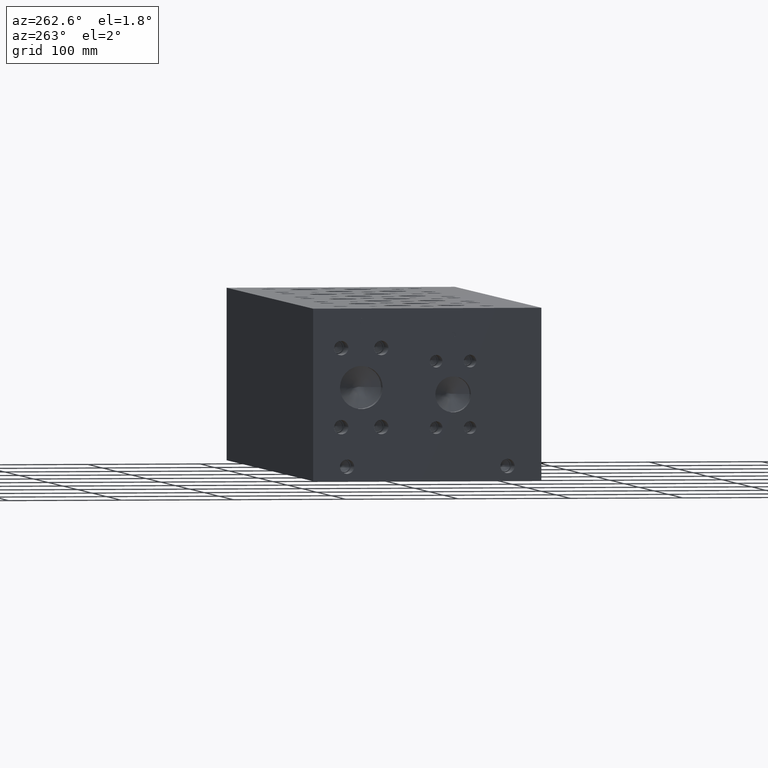
[diagram: clean part render]
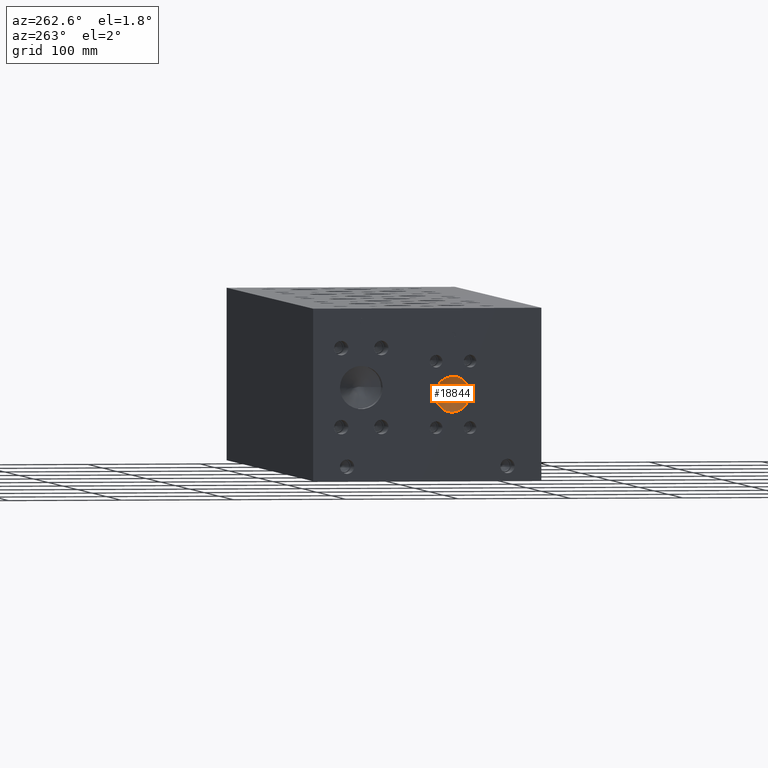
[diagram: same view with one face highlighted and labeled with its STEP entity id]
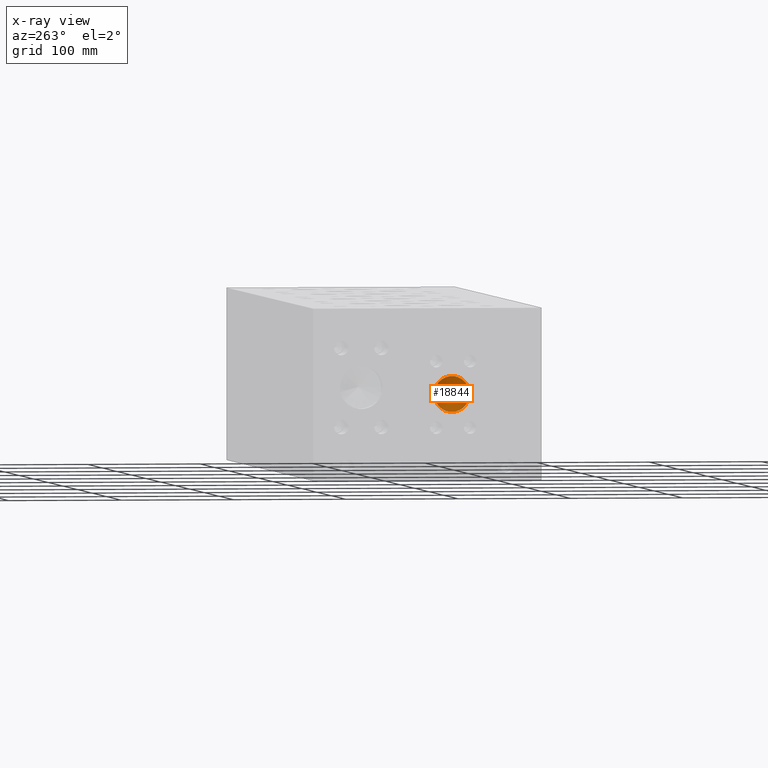
[diagram: x-ray of the same camera — body ghosted, the highlighted face saturated]
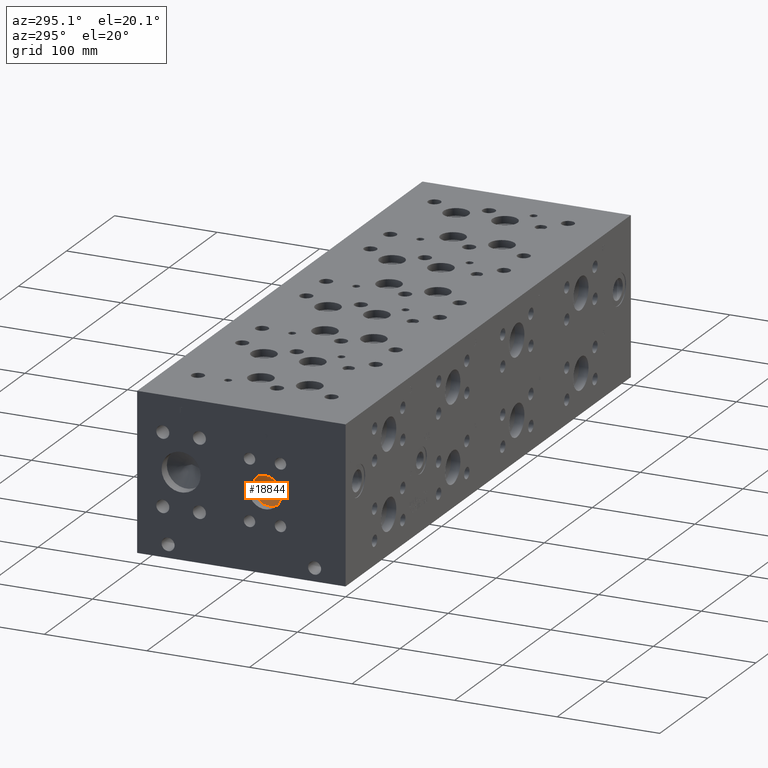
[diagram: same view with one face highlighted and labeled with its STEP entity id]
A machine part, auxiliary view. The second image highlights one B-rep face of the part: STEP entity #18844.
The next image is the same camera in x-ray: the body ghosted, the highlighted face saturated — about 0% of this face is hidden behind the body in this view.
A second angle (auxiliary view) of the same face is appended — the face is thin or edge-on in the first view.
In plain terms, the highlighted conical surface has half-angle 60 deg.
Its self-contained STEP definition (entity closure, byte-faithful):
#239=CONICAL_SURFACE('',#19911,7.9375,1.0471975511966);
#733=CIRCLE('',#19912,15.875);
#734=CIRCLE('',#19913,15.875);
#2511=FACE_OUTER_BOUND('',#3655,.T.);
#3655=EDGE_LOOP('',(#15381,#15382,#15383,#15384));
#5416=LINE('',#31460,#6985);
#6985=VECTOR('',#23483,7.9375);
#8550=VERTEX_POINT('',#31456);
#8551=VERTEX_POINT('',#31457);
#8552=VERTEX_POINT('',#31459);
#11016=EDGE_CURVE('',#8550,#8551,#733,.T.);
#11017=EDGE_CURVE('',#8551,#8552,#5416,.T.);
#11018=EDGE_CURVE('',#8551,#8550,#734,.T.);
#15381=ORIENTED_EDGE('',*,*,#11016,.T.);
#15382=ORIENTED_EDGE('',*,*,#11017,.T.);
#15383=ORIENTED_EDGE('',*,*,#11017,.F.);
#15384=ORIENTED_EDGE('',*,*,#11018,.T.);
#18844=ADVANCED_FACE('',(#2511),#239,.F.);
#19911=AXIS2_PLACEMENT_3D('',#31455,#23479,#23480);
#19912=AXIS2_PLACEMENT_3D('',#31458,#23481,#23482);
#19913=AXIS2_PLACEMENT_3D('',#31461,#23484,#23485);
#23479=DIRECTION('center_axis',(-1.,0.,0.));
#23480=DIRECTION('ref_axis',(0.,1.,0.));
#23481=DIRECTION('center_axis',(-1.,0.,0.));
#23482=DIRECTION('ref_axis',(0.,1.,0.));
#23483=DIRECTION('',(0.5,0.866025403784439,-1.06057523872491E-16));
#23484=DIRECTION('center_axis',(-1.,0.,0.));
#23485=DIRECTION('ref_axis',(0.,1.,0.));
#31455=CARTESIAN_POINT('Origin',(13.7481577616927,78.5876,76.2));
#31456=CARTESIAN_POINT('',(9.16544,94.4626,76.2));
#31457=CARTESIAN_POINT('',(9.16544,62.7126,76.2));
#31458=CARTESIAN_POINT('Origin',(9.16544,78.5876,76.2));
#31459=CARTESIAN_POINT('',(18.3308755233853,78.5876,76.2));
#31460=CARTESIAN_POINT('',(13.7481577616927,70.6501,76.2));
#31461=CARTESIAN_POINT('Origin',(9.16544,78.5876,76.2));